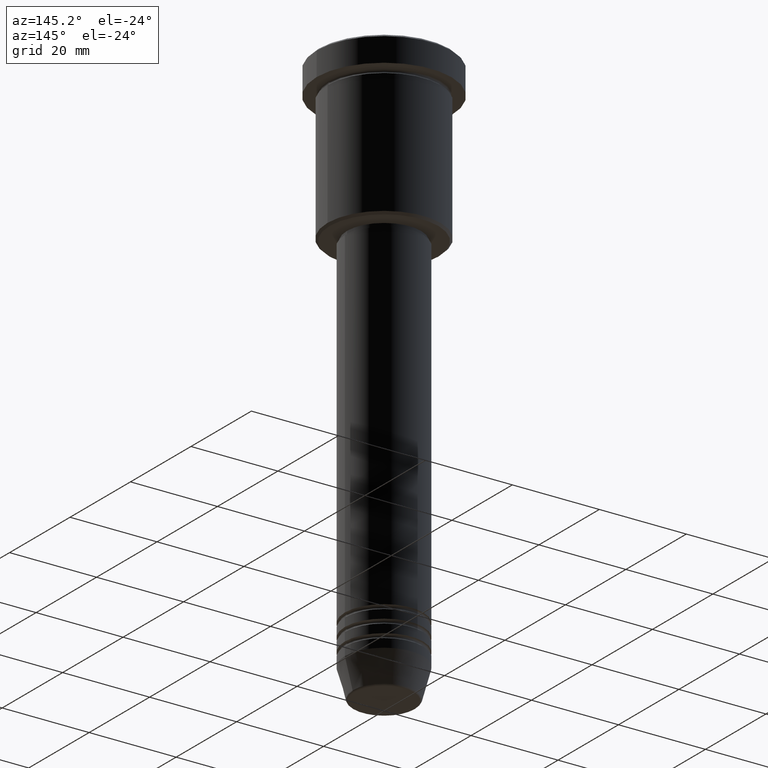
[diagram: clean part render]
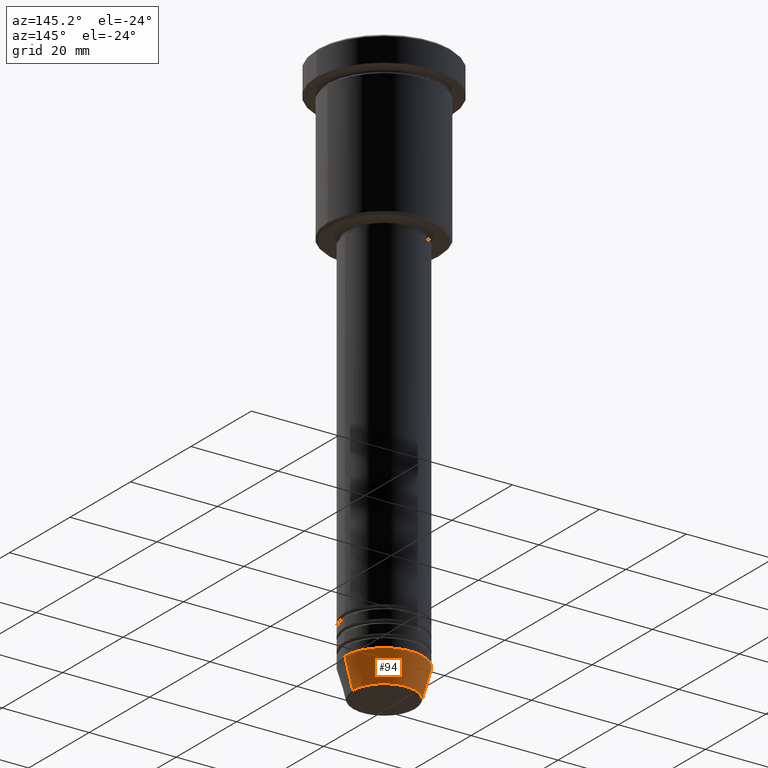
[diagram: same view with one face highlighted and labeled with its STEP entity id]
A machine part, auxiliary view. The second image highlights one B-rep face of the part: STEP entity #94.
In plain terms, the highlighted conical surface has half-angle 15 deg.
Its self-contained STEP definition (entity closure, byte-faithful):
#11 = VERTEX_POINT ( 'NONE', #787 ) ;
#21 = AXIS2_PLACEMENT_3D ( 'NONE', #851, #1039, #663 ) ;
#28 = DIRECTION ( 'NONE',  ( 0.2588190451025213501, 0.000000000000000000, 0.9659258262890680902 ) ) ;
#94 = ADVANCED_FACE ( 'NONE', ( #1148 ), #181, .T. ) ;
#111 = VERTEX_POINT ( 'NONE', #530 ) ;
#139 = AXIS2_PLACEMENT_3D ( 'NONE', #338, #698, #605 ) ;
#141 = ORIENTED_EDGE ( 'NONE', *, *, #354, .F. ) ;
#145 = VECTOR ( 'NONE', #470, 1000.000000000000000 ) ;
#181 = CONICAL_SURFACE ( 'NONE', #139, 9.000000000000000000, 0.2617993877991500740 ) ;
#260 = ORIENTED_EDGE ( 'NONE', *, *, #329, .T. ) ;
#301 = LINE ( 'NONE', #466, #145 ) ;
#329 = EDGE_CURVE ( 'NONE', #111, #1100, #792, .T. ) ;
#338 = CARTESIAN_POINT ( 'NONE',  ( 0.000000000000000000, 0.000000000000000000, -124.0000000000000000 ) ) ;
#354 = EDGE_CURVE ( 'NONE', #111, #11, #391, .T. ) ;
#371 = EDGE_CURVE ( 'NONE', #11, #918, #448, .T. ) ;
#391 = LINE ( 'NONE', #469, #717 ) ;
#403 = DIRECTION ( 'NONE',  ( -0.000000000000000000, -0.000000000000000000, 1.000000000000000000 ) ) ;
#415 = CARTESIAN_POINT ( 'NONE',  ( 0.000000000000000000, 0.000000000000000000, -124.0000000000000000 ) ) ;
#448 = CIRCLE ( 'NONE', #1172, 9.000000000000000000 ) ;
#466 = CARTESIAN_POINT ( 'NONE',  ( -9.000000000000000000, 1.102182119232617714E-15, -124.0000000000000000 ) ) ;
#469 = CARTESIAN_POINT ( 'NONE',  ( 9.000000000000000000, 0.000000000000000000, -124.0000000000000000 ) ) ;
#470 = DIRECTION ( 'NONE',  ( -0.2588190451025213501, 3.169619151431772337E-17, 0.9659258262890680902 ) ) ;
#530 = CARTESIAN_POINT ( 'NONE',  ( 7.223655072137188604, 0.000000000000000000, -130.6294095225512706 ) ) ;
#586 = ORIENTED_EDGE ( 'NONE', *, *, #915, .T. ) ;
#605 = DIRECTION ( 'NONE',  ( 1.000000000000000000, 0.000000000000000000, 0.000000000000000000 ) ) ;
#663 = DIRECTION ( 'NONE',  ( 1.000000000000000000, 0.000000000000000000, 0.000000000000000000 ) ) ;
#698 = DIRECTION ( 'NONE',  ( -0.000000000000000000, -0.000000000000000000, 1.000000000000000000 ) ) ;
#717 = VECTOR ( 'NONE', #28, 1000.000000000000000 ) ;
#776 = EDGE_LOOP ( 'NONE', ( #260, #586, #948, #141 ) ) ;
#787 = CARTESIAN_POINT ( 'NONE',  ( 9.000000000000000000, 0.000000000000000000, -124.0000000000000000 ) ) ;
#792 = CIRCLE ( 'NONE', #21, 7.223655072137188604 ) ;
#819 = CARTESIAN_POINT ( 'NONE',  ( -7.223655072137189492, 9.934123627281765110E-16, -130.6294095225512706 ) ) ;
#835 = CARTESIAN_POINT ( 'NONE',  ( -9.000000000000000000, 1.102182119232617714E-15, -124.0000000000000000 ) ) ;
#851 = CARTESIAN_POINT ( 'NONE',  ( 0.000000000000000000, 0.000000000000000000, -130.6294095225512706 ) ) ;
#856 = DIRECTION ( 'NONE',  ( 1.000000000000000000, 0.000000000000000000, 0.000000000000000000 ) ) ;
#915 = EDGE_CURVE ( 'NONE', #1100, #918, #301, .T. ) ;
#918 = VERTEX_POINT ( 'NONE', #835 ) ;
#948 = ORIENTED_EDGE ( 'NONE', *, *, #371, .F. ) ;
#1039 = DIRECTION ( 'NONE',  ( -0.000000000000000000, -0.000000000000000000, 1.000000000000000000 ) ) ;
#1100 = VERTEX_POINT ( 'NONE', #819 ) ;
#1148 = FACE_OUTER_BOUND ( 'NONE', #776, .T. ) ;
#1172 = AXIS2_PLACEMENT_3D ( 'NONE', #415, #403, #856 ) ;